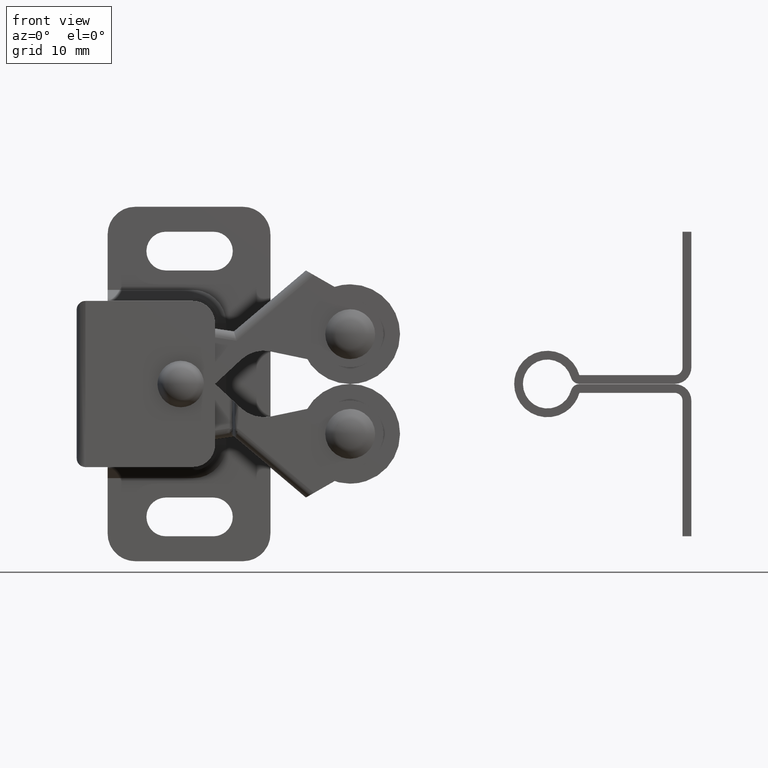
[diagram: clean part render]
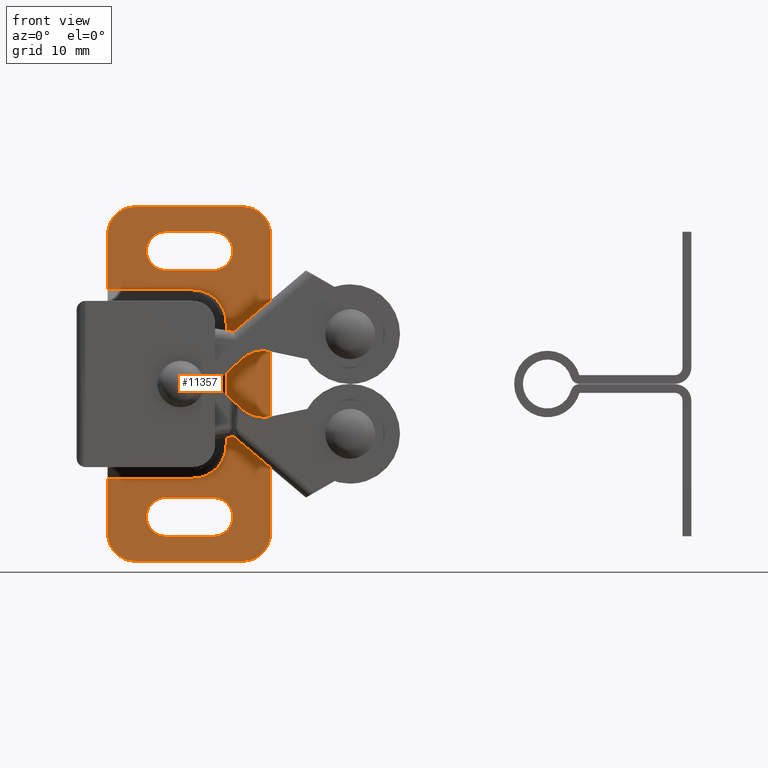
[diagram: same view with one face highlighted and labeled with its STEP entity id]
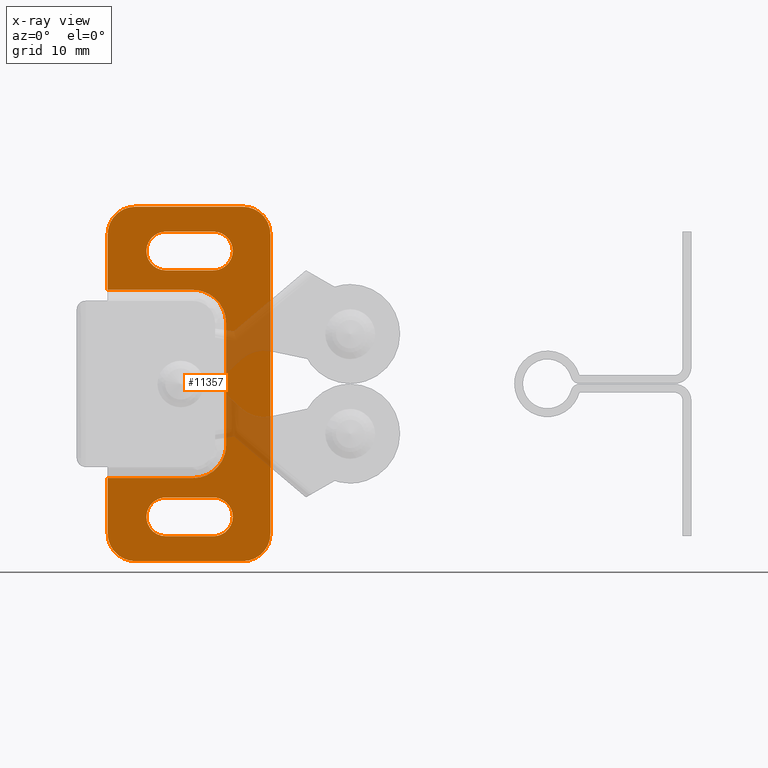
[diagram: x-ray of the same camera — body ghosted, the highlighted face saturated]
A machine part, front view. The second image highlights one B-rep face of the part: STEP entity #11357.
The next image is the same camera in x-ray: the body ghosted, the highlighted face saturated — about 12% of this face is hidden behind the body in this view.
In plain terms, the highlighted face is a freeform B-spline surface patch.
Its self-contained STEP definition (entity closure, byte-faithful):
#10321=CARTESIAN_POINT('',(10.499999842920399,6.699996000000150,8.500000000000000));
#10322=VERTEX_POINT('',#10321);
#10344=CARTESIAN_POINT('',(13.500000000000000,6.699996000000150,5.500000000000000));
#10345=VERTEX_POINT('',#10344);
#10351=CARTESIAN_POINT('',(13.500000000000000,6.699996000000150,5.500000000000000));
#10352=CARTESIAN_POINT('',(13.500164790992249,6.699996000000169,5.806817911306431));
#10353=CARTESIAN_POINT('',(13.418301996770570,6.699996000000164,6.334399845449437));
#10354=CARTESIAN_POINT('',(13.118085500934059,6.699996000000088,7.011672658640977));
#10355=CARTESIAN_POINT('',(12.702614827809430,6.699996000000186,7.579158652842103));
#10356=CARTESIAN_POINT('',(12.153039087267141,6.699996000000171,8.041624771626639));
#10357=CARTESIAN_POINT('',(11.395713369716960,6.699996000000103,8.405478929700433));
#10358=CARTESIAN_POINT('',(10.831366277701809,6.699996000000165,8.500194152543978));
#10359=CARTESIAN_POINT('',(10.499999842920399,6.699996000000150,8.500000000000000));
#10360=B_SPLINE_CURVE_WITH_KNOTS('',3,(#10351,#10352,#10353,#10354,#10355,#10356,#10357,#10358,#10359),.UNSPECIFIED.,.F.,.U.,(4,1,1,1,1,1,4),(0.000000086782790,0.920394662575809,1.583079629347033,2.208971360358279,3.018890256797993,3.718397701722046,4.712418637164999),.UNSPECIFIED.);
#10361=EDGE_CURVE('',#10345,#10322,#10360,.T.);
#10373=CARTESIAN_POINT('',(2.800003000000105,6.699996000000000,8.500000000000000));
#10374=VERTEX_POINT('',#10373);
#10386=CARTESIAN_POINT('',(10.499999842920399,6.699996000000150,8.500000000000000));
#10387=CARTESIAN_POINT('',(2.800003000000105,6.699996000000000,8.500000000000000));
#10388=QUASI_UNIFORM_CURVE('',1,(#10386,#10387),.UNSPECIFIED.,.F.,.U.);
#10389=EDGE_CURVE('',#10322,#10374,#10388,.T.);
#10407=CARTESIAN_POINT('',(13.500000000000000,6.699996000000150,-5.500000000000000));
#10408=VERTEX_POINT('',#10407);
#10414=CARTESIAN_POINT('',(13.500000000000000,6.699996000000150,-5.500000000000000));
#10415=CARTESIAN_POINT('',(13.500000000000000,6.699996000000150,5.500000000000000));
#10416=QUASI_UNIFORM_CURVE('',1,(#10414,#10415),.UNSPECIFIED.,.F.,.U.);
#10417=EDGE_CURVE('',#10408,#10345,#10416,.T.);
#10453=CARTESIAN_POINT('',(10.500000000000000,6.699996000000150,-8.500000000000000));
#10454=VERTEX_POINT('',#10453);
#10460=CARTESIAN_POINT('',(10.500000000000000,6.699996000000150,-8.500000000000000));
#10461=CARTESIAN_POINT('',(10.684077426357121,6.699996000000148,-8.500012254484622));
#10462=CARTESIAN_POINT('',(11.089050550760280,6.699996000000140,-8.462633674165730));
#10463=CARTESIAN_POINT('',(11.632547265452869,6.699996000000160,-8.297774064741828));
#10464=CARTESIAN_POINT('',(12.188081721849640,6.699996000000134,-8.005203388140222));
#10465=CARTESIAN_POINT('',(12.675548351387290,6.699996000000168,-7.605199067160496));
#10466=CARTESIAN_POINT('',(13.116647446445389,6.699996000000133,-7.025441911681082));
#10467=CARTESIAN_POINT('',(13.423250511658800,6.699996000000094,-6.322175525903290));
#10468=CARTESIAN_POINT('',(13.500099927481569,6.699996000000195,-5.782261343658816));
#10469=CARTESIAN_POINT('',(13.500000000000000,6.699996000000150,-5.500000000000000));
#10470=B_SPLINE_CURVE_WITH_KNOTS('',3,(#10460,#10461,#10462,#10463,#10464,#10465,#10466,#10467,#10468,#10469),.UNSPECIFIED.,.F.,.U.,(4,1,1,1,1,1,1,4),(0.000000086815468,0.552236914626566,1.214921184312442,1.693533652310540,2.429820757435291,3.092515783049000,3.865658408535317,4.712418548631765),.UNSPECIFIED.);
#10471=EDGE_CURVE('',#10454,#10408,#10470,.T.);
#10489=CARTESIAN_POINT('',(2.800003000000105,6.699996000000000,-8.500000000000000));
#10490=VERTEX_POINT('',#10489);
#10496=CARTESIAN_POINT('',(2.800003000000105,6.699996000000000,-8.500000000000000));
#10497=CARTESIAN_POINT('',(10.500000000000000,6.699996000000150,-8.500000000000000));
#10498=QUASI_UNIFORM_CURVE('',1,(#10496,#10497),.UNSPECIFIED.,.F.,.U.);
#10499=EDGE_CURVE('',#10490,#10454,#10498,.T.);
#10534=CARTESIAN_POINT('',(15.0,6.699996000000000,16.0));
#10535=VERTEX_POINT('',#10534);
#10541=CARTESIAN_POINT('',(17.500000000000000,6.699996000000000,13.500000000000000));
#10542=VERTEX_POINT('',#10541);
#10543=CARTESIAN_POINT('',(17.500000000000000,6.699996000000000,13.500000000000000));
#10544=CARTESIAN_POINT('',(17.500026443577600,6.699996000000006,13.694297521353530));
#10545=CARTESIAN_POINT('',(17.447353209148631,6.699995999999995,14.144282120578300));
#10546=CARTESIAN_POINT('',(17.205557638729481,6.699996000000006,14.738485519065289));
#10547=CARTESIAN_POINT('',(16.875217698742109,6.699995999999968,15.172396049441049));
#10548=CARTESIAN_POINT('',(16.529933836741570,6.699996000000029,15.493185821296040));
#10549=CARTESIAN_POINT('',(16.150465389947950,6.699995999999949,15.740072509364500));
#10550=CARTESIAN_POINT('',(15.613553972899391,6.699996000000039,15.947161308134280));
#10551=CARTESIAN_POINT('',(15.224991772240760,6.699995999999972,16.000081238543348));
#10552=CARTESIAN_POINT('',(15.0,6.699996000000000,16.0));
#10553=B_SPLINE_CURVE_WITH_KNOTS('',3,(#10543,#10544,#10545,#10546,#10547,#10548,#10549,#10550,#10551,#10552),.UNSPECIFIED.,.F.,.U.,(4,1,1,1,1,1,1,4),(0.000000093621064,0.582904044600343,1.349913139585673,1.902160009665498,2.208923417745156,2.761178339133434,3.252063056334454,3.927015457196622),.UNSPECIFIED.);
#10554=EDGE_CURVE('',#10542,#10535,#10553,.T.);
#10595=CARTESIAN_POINT('',(2.800003000000105,6.699996000000000,13.500000000000000));
#10596=VERTEX_POINT('',#10595);
#10602=CARTESIAN_POINT('',(5.300003000000100,6.699996000000000,16.0));
#10603=VERTEX_POINT('',#10602);
#10604=CARTESIAN_POINT('',(5.300003000000100,6.699996000000000,16.0));
#10605=CARTESIAN_POINT('',(5.105700094511433,6.699996000000001,16.000039938621210));
#10606=CARTESIAN_POINT('',(4.768245326871916,6.699995999999991,15.960448202411319));
#10607=CARTESIAN_POINT('',(4.251667516666286,6.699995999999996,15.789833650864800));
#10608=CARTESIAN_POINT('',(3.815480421984535,6.699995999999998,15.535602605517740));
#10609=CARTESIAN_POINT('',(3.414444545729189,6.699995999999992,15.167580866215310));
#10610=CARTESIAN_POINT('',(3.064714875869247,6.699995999999981,14.683983640821660));
#10611=CARTESIAN_POINT('',(2.844906125024445,6.699996000000041,14.103381981033190));
#10612=CARTESIAN_POINT('',(2.799990668613427,6.699995999999961,13.673843524522550));
#10613=CARTESIAN_POINT('',(2.800003000000105,6.699996000000000,13.500000000000000));
#10614=B_SPLINE_CURVE_WITH_KNOTS('',3,(#10604,#10605,#10606,#10607,#10608,#10609,#10610,#10611,#10612,#10613),.UNSPECIFIED.,.F.,.U.,(4,1,1,1,1,1,1,4),(0.000000093620197,0.582904044599788,1.012433887369916,1.626037914768931,2.086208161121198,2.638460174722054,3.405472592294406,3.927015457196608),.UNSPECIFIED.);
#10615=EDGE_CURVE('',#10603,#10596,#10614,.T.);
#10656=CARTESIAN_POINT('',(5.300003000000100,6.699996000000000,-16.0));
#10657=VERTEX_POINT('',#10656);
#10663=CARTESIAN_POINT('',(2.800003000000105,6.699996000000000,-13.500000000000000));
#10664=VERTEX_POINT('',#10663);
#10665=CARTESIAN_POINT('',(2.800003000000105,6.699996000000000,-13.500000000000000));
#10666=CARTESIAN_POINT('',(2.799675240772572,6.699996000000028,-13.817081809960680));
#10667=CARTESIAN_POINT('',(2.896680792739701,6.699995999999954,-14.317915159279391));
#10668=CARTESIAN_POINT('',(3.245926376281643,6.699996000000028,-14.971274124395400));
#10669=CARTESIAN_POINT('',(3.629955819421499,6.699995999999985,-15.389854395637760));
#10670=CARTESIAN_POINT('',(4.078610679084194,6.699995999999972,-15.697542292770970));
#10671=CARTESIAN_POINT('',(4.604677884744888,6.699996000000044,-15.930817971381600));
#10672=CARTESIAN_POINT('',(5.034095915596818,6.699995999999989,-16.000135839647871));
#10673=CARTESIAN_POINT('',(5.300003000000100,6.699996000000000,-16.0));
#10674=B_SPLINE_CURVE_WITH_KNOTS('',3,(#10665,#10666,#10667,#10668,#10669,#10670,#10671,#10672,#10673),.UNSPECIFIED.,.F.,.U.,(4,1,1,1,1,1,4),(0.000000093621788,0.951073780451954,1.503324657828514,2.208923417745424,2.638460174722138,3.129344891922508,3.927015457196613),.UNSPECIFIED.);
#10675=EDGE_CURVE('',#10664,#10657,#10674,.T.);
#10716=CARTESIAN_POINT('',(17.500000000000000,6.699996000000000,-13.500000000000000));
#10717=VERTEX_POINT('',#10716);
#10723=CARTESIAN_POINT('',(15.0,6.699996000000000,-16.0));
#10724=VERTEX_POINT('',#10723);
#10725=CARTESIAN_POINT('',(15.0,6.699996000000000,-16.0));
#10726=CARTESIAN_POINT('',(15.286364326485410,6.699996000000020,-16.000192421571480));
#10727=CARTESIAN_POINT('',(15.787339935135380,6.699995999999961,-15.912943244509821));
#10728=CARTESIAN_POINT('',(16.411695895556878,6.699996000000047,-15.593792428238119));
#10729=CARTESIAN_POINT('',(16.892539320235841,6.699995999999980,-15.173887586791979));
#10730=CARTESIAN_POINT('',(17.225298085316940,6.699995999999995,-14.688828012416661));
#10731=CARTESIAN_POINT('',(17.447172271057990,6.699996000000024,-14.113556535749071));
#10732=CARTESIAN_POINT('',(17.500072212080010,6.699995999999996,-13.724989760924659));
#10733=CARTESIAN_POINT('',(17.500000000000000,6.699996000000000,-13.500000000000000));
#10734=B_SPLINE_CURVE_WITH_KNOTS('',3,(#10725,#10726,#10727,#10728,#10729,#10730,#10731,#10732,#10733),.UNSPECIFIED.,.F.,.U.,(4,1,1,1,1,1,4),(0.000000093626884,0.859031573901933,1.503324657829756,2.086208161121988,2.761178339133837,3.252063056334594,3.927015457196625),.UNSPECIFIED.);
#10735=EDGE_CURVE('',#10724,#10717,#10734,.T.);
#10750=CARTESIAN_POINT('',(12.350006000000000,6.699996000008920,10.250000000000000));
#10751=VERTEX_POINT('',#10750);
#10766=CARTESIAN_POINT('',(8.050003030543241,6.699996000000000,10.250000000000000));
#10767=VERTEX_POINT('',#10766);
#10773=CARTESIAN_POINT('',(12.350006000000000,6.699996000008920,10.250000000000000));
#10774=CARTESIAN_POINT('',(8.050003030543241,6.699996000000000,10.250000000000000));
#10775=QUASI_UNIFORM_CURVE('',1,(#10773,#10774),.UNSPECIFIED.,.F.,.U.);
#10776=EDGE_CURVE('',#10751,#10767,#10775,.T.);
#10829=CARTESIAN_POINT('',(8.050003000000000,6.699996000008920,13.750000000000000));
#10830=VERTEX_POINT('',#10829);
#10836=CARTESIAN_POINT('',(6.300003000000000,6.699996000008919,11.999999973799911));
#10837=VERTEX_POINT('',#10836);
#10838=CARTESIAN_POINT('',(6.300003000000000,6.699996000008919,11.999999973799911));
#10839=CARTESIAN_POINT('',(6.299922313765465,6.699996000009359,12.171815213979400));
#10840=CARTESIAN_POINT('',(6.342547738128193,6.699996000009967,12.458100828091050));
#10841=CARTESIAN_POINT('',(6.529622662025338,6.699996000010664,12.910083261507021));
#10842=CARTESIAN_POINT('',(6.824605727208831,6.699996000010872,13.288042558517240));
#10843=CARTESIAN_POINT('',(7.217833535814606,6.699996000010538,13.557708793450590));
#10844=CARTESIAN_POINT('',(7.620515029452736,6.699996000009922,13.713017326886270));
#10845=CARTESIAN_POINT('',(7.892512765072408,6.699996000009342,13.750053161052261));
#10846=CARTESIAN_POINT('',(8.050003000000000,6.699996000008920,13.750000000000000));
#10847=B_SPLINE_CURVE_WITH_KNOTS('',3,(#10838,#10839,#10840,#10841,#10842,#10843,#10844,#10845,#10846),.UNSPECIFIED.,.F.,.U.,(4,1,1,1,1,1,4),(0.000000047594421,0.515430764800540,0.859058626617222,1.460378322110406,1.932860587918844,2.276493335289493,2.748962567353624),.UNSPECIFIED.);
#10848=EDGE_CURVE('',#10837,#10830,#10847,.T.);
#10850=CARTESIAN_POINT('',(8.050003030543241,6.699996000000000,10.250000000000000));
#10851=CARTESIAN_POINT('',(7.849535008606246,6.699996000000511,10.249839514667061));
#10852=CARTESIAN_POINT('',(7.563300758786978,6.699996000001369,10.299763193968021));
#10853=CARTESIAN_POINT('',(7.195825301871738,6.699996000002733,10.462693349055129));
#10854=CARTESIAN_POINT('',(6.884761886678160,6.699996000004022,10.670431664707371));
#10855=CARTESIAN_POINT('',(6.563984446744162,6.699996000005777,11.024298082185570));
#10856=CARTESIAN_POINT('',(6.346636866131135,6.699996000007523,11.498895320040621));
#10857=CARTESIAN_POINT('',(6.299967061842147,6.699996000008518,11.842515404508960));
#10858=CARTESIAN_POINT('',(6.300003000000000,6.699996000008919,11.999999973799911));
#10859=B_SPLINE_CURVE_WITH_KNOTS('',3,(#10850,#10851,#10852,#10853,#10854,#10855,#10856,#10857,#10858),.UNSPECIFIED.,.F.,.U.,(4,1,1,1,1,1,4),(0.000000047610048,0.601334655332333,0.859058622779918,1.202681192672660,1.718086795937795,2.276493325082185,2.748962555034371),.UNSPECIFIED.);
#10860=EDGE_CURVE('',#10767,#10837,#10859,.T.);
#10878=CARTESIAN_POINT('',(12.350006000000000,6.699996000008920,13.750000000000000));
#10879=VERTEX_POINT('',#10878);
#10885=CARTESIAN_POINT('',(8.050003000000000,6.699996000008920,13.750000000000000));
#10886=CARTESIAN_POINT('',(12.350006000000000,6.699996000008920,13.750000000000000));
#10887=QUASI_UNIFORM_CURVE('',1,(#10885,#10886),.UNSPECIFIED.,.F.,.U.);
#10888=EDGE_CURVE('',#10830,#10879,#10887,.T.);
#10940=CARTESIAN_POINT('',(14.100005999999480,6.699996000008920,11.999998648162199));
#10941=VERTEX_POINT('',#10940);
#10942=CARTESIAN_POINT('',(14.100005999999480,6.699996000008920,11.999998648162199));
#10943=CARTESIAN_POINT('',(14.100038208199109,6.699996000008924,11.856826156049109));
#10944=CARTESIAN_POINT('',(14.068203939572181,6.699996000008915,11.599131037440721));
#10945=CARTESIAN_POINT('',(13.951873837269190,6.699996000008923,11.274042532086670));
#10946=CARTESIAN_POINT('',(13.796188394271100,6.699996000008915,10.999250485787471));
#10947=CARTESIAN_POINT('',(13.549834160486309,6.699996000008933,10.698912861814181));
#10948=CARTESIAN_POINT('',(13.209060423671509,6.699996000008902,10.452594140076879));
#10949=CARTESIAN_POINT('',(12.779488278331050,6.699996000008952,10.286990252214210));
#10950=CARTESIAN_POINT('',(12.507495694419379,6.699996000008849,10.249947395494830));
#10951=CARTESIAN_POINT('',(12.350006000000000,6.699996000008920,10.250000000000000));
#10952=B_SPLINE_CURVE_WITH_KNOTS('',3,(#10942,#10943,#10944,#10945,#10946,#10947,#10948,#10949,#10950,#10951),.UNSPECIFIED.,.F.,.U.,(4,1,1,1,1,1,1,4),(0.000000048538146,0.429521300531190,0.773149262178612,1.030873822679953,1.374480935769624,1.932860041479693,2.276492691729038,2.748961790649088),.UNSPECIFIED.);
#10953=EDGE_CURVE('',#10941,#10751,#10952,.T.);
#10955=CARTESIAN_POINT('',(12.350006000000000,6.699996000008920,13.750000000000000));
#10956=CARTESIAN_POINT('',(12.550464140282671,6.699996000008913,13.750118358878799));
#10957=CARTESIAN_POINT('',(12.865346740716481,6.699996000008936,13.695288577549899));
#10958=CARTESIAN_POINT('',(13.255477060943109,6.699996000008907,13.510679633092730));
#10959=CARTESIAN_POINT('',(13.590663076895270,6.699996000008940,13.262229584503149));
#10960=CARTESIAN_POINT('',(13.853373692824380,6.699996000008902,12.933937466891379));
#10961=CARTESIAN_POINT('',(14.051563133265470,6.699996000008918,12.486720849217050));
#10962=CARTESIAN_POINT('',(14.100106788908050,6.699996000008964,12.186134072667830));
#10963=CARTESIAN_POINT('',(14.100005999999480,6.699996000008920,11.999998648162199));
#10964=B_SPLINE_CURVE_WITH_KNOTS('',3,(#10955,#10956,#10957,#10958,#10959,#10960,#10961,#10962,#10963),.UNSPECIFIED.,.F.,.U.,(4,1,1,1,1,1,4),(0.000000046683919,0.601334820676062,0.944967435313995,1.288582058285503,1.846951059793545,2.190583900463937,2.748963314523375),.UNSPECIFIED.);
#10965=EDGE_CURVE('',#10879,#10941,#10964,.T.);
#10975=CARTESIAN_POINT('',(12.350006000000000,6.699996000008920,-13.750000000000000));
#10976=VERTEX_POINT('',#10975);
#10991=CARTESIAN_POINT('',(8.050003030543241,6.699996000000000,-13.750000000000000));
#10992=VERTEX_POINT('',#10991);
#10998=CARTESIAN_POINT('',(12.350006000000000,6.699996000008920,-13.750000000000000));
#10999=CARTESIAN_POINT('',(8.050003030543241,6.699996000000000,-13.750000000000000));
#11000=QUASI_UNIFORM_CURVE('',1,(#10998,#10999),.UNSPECIFIED.,.F.,.U.);
#11001=EDGE_CURVE('',#10976,#10992,#11000,.T.);
#11053=CARTESIAN_POINT('',(8.050003000000000,6.699996000008920,-10.250000000000000));
#11054=VERTEX_POINT('',#11053);
#11060=CARTESIAN_POINT('',(6.300003000000000,6.699996000008919,-12.000000026200089));
#11061=VERTEX_POINT('',#11060);
#11062=CARTESIAN_POINT('',(6.300003000000000,6.699996000008919,-12.000000026200089));
#11063=CARTESIAN_POINT('',(6.299755423523512,6.699996000009527,-11.770890193684950));
#11064=CARTESIAN_POINT('',(6.379898177933420,6.699996000010288,-11.370197093415010));
#11065=CARTESIAN_POINT('',(6.647764689777015,6.699996000010813,-10.923306173818760));
#11066=CARTESIAN_POINT('',(6.922497166002684,6.699996000010751,-10.648698671749610));
#11067=CARTESIAN_POINT('',(7.195018095021312,6.699996000010603,-10.461710197911451));
#11068=CARTESIAN_POINT('',(7.563275170950368,6.699996000009992,-10.298434352129320));
#11069=CARTESIAN_POINT('',(7.863867012699043,6.699996000009429,-10.249899547424061));
#11070=CARTESIAN_POINT('',(8.050003000000000,6.699996000008920,-10.250000000000000));
#11071=B_SPLINE_CURVE_WITH_KNOTS('',3,(#11062,#11063,#11064,#11065,#11066,#11067,#11068,#11069,#11070),.UNSPECIFIED.,.F.,.U.,(4,1,1,1,1,1,4),(0.000000047594828,0.687241030828337,1.202681198041110,1.546277839256483,1.846950557402709,2.190583304769963,2.748962567353601),.UNSPECIFIED.);
#11072=EDGE_CURVE('',#11061,#11054,#11071,.T.);
#11074=CARTESIAN_POINT('',(8.050003030543241,6.699996000000000,-13.750000000000000));
#11075=CARTESIAN_POINT('',(7.849546644110243,6.699996000000505,-13.750114208136329));
#11076=CARTESIAN_POINT('',(7.534665305495952,6.699996000001456,-13.695291968454139));
#11077=CARTESIAN_POINT('',(7.092467618808509,6.699996000003110,-13.486114768136520));
#11078=CARTESIAN_POINT('',(6.801602779737903,6.699996000004461,-13.247442197210990));
#11079=CARTESIAN_POINT('',(6.563169871575814,6.699996000005855,-12.941820594777120));
#11080=CARTESIAN_POINT('',(6.364082394468965,6.699996000007330,-12.558260939145370));
#11081=CARTESIAN_POINT('',(6.299811927986085,6.699996000008378,-12.214787242055721));
#11082=CARTESIAN_POINT('',(6.300003000000000,6.699996000008919,-12.000000026200089));
#11083=B_SPLINE_CURVE_WITH_KNOTS('',3,(#11074,#11075,#11076,#11077,#11078,#11079,#11080,#11081,#11082),.UNSPECIFIED.,.F.,.U.,(4,1,1,1,1,1,4),(0.000000047609451,0.601334655332016,0.944967175034926,1.460378315591622,1.718086795937763,2.104674868526459,2.748962555034371),.UNSPECIFIED.);
#11084=EDGE_CURVE('',#10992,#11061,#11083,.T.);
#11102=CARTESIAN_POINT('',(12.350006000000000,6.699996000008920,-10.250000000000000));
#11103=VERTEX_POINT('',#11102);
#11109=CARTESIAN_POINT('',(8.050003000000000,6.699996000008920,-10.250000000000000));
#11110=CARTESIAN_POINT('',(12.350006000000000,6.699996000008920,-10.250000000000000));
#11111=QUASI_UNIFORM_CURVE('',1,(#11109,#11110),.UNSPECIFIED.,.F.,.U.);
#11112=EDGE_CURVE('',#11054,#11103,#11111,.T.);
#11164=CARTESIAN_POINT('',(14.100005999999480,6.699996000008921,-12.000001351837810));
#11165=VERTEX_POINT('',#11164);
#11166=CARTESIAN_POINT('',(14.100005999999480,6.699996000008921,-12.000001351837810));
#11167=CARTESIAN_POINT('',(14.100043963683540,6.699996000008931,-12.143174588790160));
#11168=CARTESIAN_POINT('',(14.068196212068120,6.699996000008912,-12.400867112345070));
#11169=CARTESIAN_POINT('',(13.942190455098229,6.699996000008915,-12.753052892055820));
#11170=CARTESIAN_POINT('',(13.779463879518760,6.699996000008952,-13.024515648398779));
#11171=CARTESIAN_POINT('',(13.573165203153019,6.699996000008893,-13.263643654828080));
#11172=CARTESIAN_POINT('',(13.272971488664350,6.699996000008921,-13.510193126810510));
#11173=CARTESIAN_POINT('',(12.851106984798321,6.699996000008961,-13.703339446947790));
#11174=CARTESIAN_POINT('',(12.507492215371970,6.699996000008854,-13.750043072808371));
#11175=CARTESIAN_POINT('',(12.350006000000000,6.699996000008920,-13.750000000000000));
#11176=B_SPLINE_CURVE_WITH_KNOTS('',3,(#11166,#11167,#11168,#11169,#11170,#11171,#11172,#11173,#11174,#11175),.UNSPECIFIED.,.F.,.U.,(4,1,1,1,1,1,1,4),(0.000000048541498,0.429521300534117,0.773149262181103,1.116778503429260,1.374480935771396,1.718086318133064,2.276492691729694,2.748961790649044),.UNSPECIFIED.);
#11177=EDGE_CURVE('',#11165,#10976,#11176,.T.);
#11179=CARTESIAN_POINT('',(12.350006000000000,6.699996000008920,-10.250000000000000));
#11180=CARTESIAN_POINT('',(12.493178328799051,6.699996000008916,-10.249967481904831));
#11181=CARTESIAN_POINT('',(12.750873831154440,6.699996000008932,-10.281804170208369));
#11182=CARTESIAN_POINT('',(13.103038649821681,6.699996000008929,-10.407835892159129));
#11183=CARTESIAN_POINT('',(13.473331248360800,6.699996000008843,-10.629616730898970));
#11184=CARTESIAN_POINT('',(13.763829498912250,6.699996000009065,-10.934755800984769));
#11185=CARTESIAN_POINT('',(13.971625719165781,6.699996000008830,-11.312516835491120));
#11186=CARTESIAN_POINT('',(14.076036604838700,6.699996000008829,-11.642076722682070));
#11187=CARTESIAN_POINT('',(14.100019344155440,6.699996000009016,-11.885469382916520));
#11188=CARTESIAN_POINT('',(14.100005999999480,6.699996000008921,-12.000001351837810));
#11189=B_SPLINE_CURVE_WITH_KNOTS('',3,(#11179,#11180,#11181,#11182,#11183,#11184,#11185,#11186,#11187,#11188),.UNSPECIFIED.,.F.,.U.,(4,1,1,1,1,1,1,4),(0.000000046685173,0.429521537306341,0.773149689322664,1.116779120351162,1.718087270682433,2.018769563416735,2.405357742947194,2.748963314523376),.UNSPECIFIED.);
#11190=EDGE_CURVE('',#11103,#11165,#11189,.T.);
#11206=CARTESIAN_POINT('',(15.0,6.699996000000000,16.0));
#11207=CARTESIAN_POINT('',(5.300003000000100,6.699996000000000,16.0));
#11208=QUASI_UNIFORM_CURVE('',1,(#11206,#11207),.UNSPECIFIED.,.F.,.U.);
#11209=EDGE_CURVE('',#10535,#10603,#11208,.T.);
#11220=CARTESIAN_POINT('',(17.500000000000000,6.699996000000000,-13.500000000000000));
#11221=CARTESIAN_POINT('',(17.500000000000000,6.699996000000000,13.500000000000000));
#11222=QUASI_UNIFORM_CURVE('',1,(#11220,#11221),.UNSPECIFIED.,.F.,.U.);
#11223=EDGE_CURVE('',#10717,#10542,#11222,.T.);
#11246=CARTESIAN_POINT('',(5.300003000000100,6.699996000000000,-16.0));
#11247=CARTESIAN_POINT('',(15.0,6.699996000000000,-16.0));
#11248=QUASI_UNIFORM_CURVE('',1,(#11246,#11247),.UNSPECIFIED.,.F.,.U.);
#11249=EDGE_CURVE('',#10657,#10724,#11248,.T.);
#11286=CARTESIAN_POINT('',(2.800003000000105,6.699996000000000,-8.500000000000000));
#11287=CARTESIAN_POINT('',(2.800003000000105,6.699996000000000,-13.500000000000000));
#11288=QUASI_UNIFORM_CURVE('',1,(#11286,#11287),.UNSPECIFIED.,.F.,.U.);
#11289=EDGE_CURVE('',#10490,#10664,#11288,.T.);
#11316=CARTESIAN_POINT('',(2.065738178341556,6.699996000000000,17.598399937977788));
#11317=CARTESIAN_POINT('',(18.234265215943189,6.699996000000000,17.598399937977788));
#11318=CARTESIAN_POINT('',(2.065738178341556,6.699996000000000,-17.598400796284679));
#11319=CARTESIAN_POINT('',(18.234265215943189,6.699996000000000,-17.598400796284679));
#11320=B_SPLINE_SURFACE_WITH_KNOTS('',1,1,((#11316,#11318),(#11317,#11319)),.UNSPECIFIED.,.F.,.F.,.U.,(2,2),(2,2),(0.0,16.168527037601638),(0.0,35.196800734262467),.UNSPECIFIED.);
#11321=ORIENTED_EDGE('',*,*,#10389,.F.);
#11322=ORIENTED_EDGE('',*,*,#10361,.F.);
#11323=ORIENTED_EDGE('',*,*,#10417,.F.);
#11324=ORIENTED_EDGE('',*,*,#10471,.F.);
#11325=ORIENTED_EDGE('',*,*,#10499,.F.);
#11326=ORIENTED_EDGE('',*,*,#11289,.T.);
#11327=ORIENTED_EDGE('',*,*,#10675,.T.);
#11328=ORIENTED_EDGE('',*,*,#11249,.T.);
#11329=ORIENTED_EDGE('',*,*,#10735,.T.);
#11330=ORIENTED_EDGE('',*,*,#11223,.T.);
#11331=ORIENTED_EDGE('',*,*,#10554,.T.);
#11332=ORIENTED_EDGE('',*,*,#11209,.T.);
#11333=ORIENTED_EDGE('',*,*,#10615,.T.);
#11334=CARTESIAN_POINT('',(2.800003000000105,6.699996000000000,13.500000000000000));
#11335=CARTESIAN_POINT('',(2.800003000000105,6.699996000000000,8.500000000000000));
#11336=QUASI_UNIFORM_CURVE('',1,(#11334,#11335),.UNSPECIFIED.,.F.,.U.);
#11337=EDGE_CURVE('',#10596,#10374,#11336,.T.);
#11338=ORIENTED_EDGE('',*,*,#11337,.T.);
#11339=EDGE_LOOP('',(#11321,#11322,#11323,#11324,#11325,#11326,#11327,#11328,#11329,#11330,#11331,#11332,#11333,#11338));
#11340=FACE_OUTER_BOUND('',#11339,.T.);
#11341=ORIENTED_EDGE('',*,*,#11112,.T.);
#11342=ORIENTED_EDGE('',*,*,#11190,.T.);
#11343=ORIENTED_EDGE('',*,*,#11177,.T.);
#11344=ORIENTED_EDGE('',*,*,#11001,.T.);
#11345=ORIENTED_EDGE('',*,*,#11084,.T.);
#11346=ORIENTED_EDGE('',*,*,#11072,.T.);
#11347=EDGE_LOOP('',(#11341,#11342,#11343,#11344,#11345,#11346));
#11348=FACE_BOUND('',#11347,.T.);
#11349=ORIENTED_EDGE('',*,*,#10888,.T.);
#11350=ORIENTED_EDGE('',*,*,#10965,.T.);
#11351=ORIENTED_EDGE('',*,*,#10953,.T.);
#11352=ORIENTED_EDGE('',*,*,#10776,.T.);
#11353=ORIENTED_EDGE('',*,*,#10860,.T.);
#11354=ORIENTED_EDGE('',*,*,#10848,.T.);
#11355=EDGE_LOOP('',(#11349,#11350,#11351,#11352,#11353,#11354));
#11356=FACE_BOUND('',#11355,.T.);
#11357=ADVANCED_FACE('',(#11340,#11348,#11356),#11320,.F.);